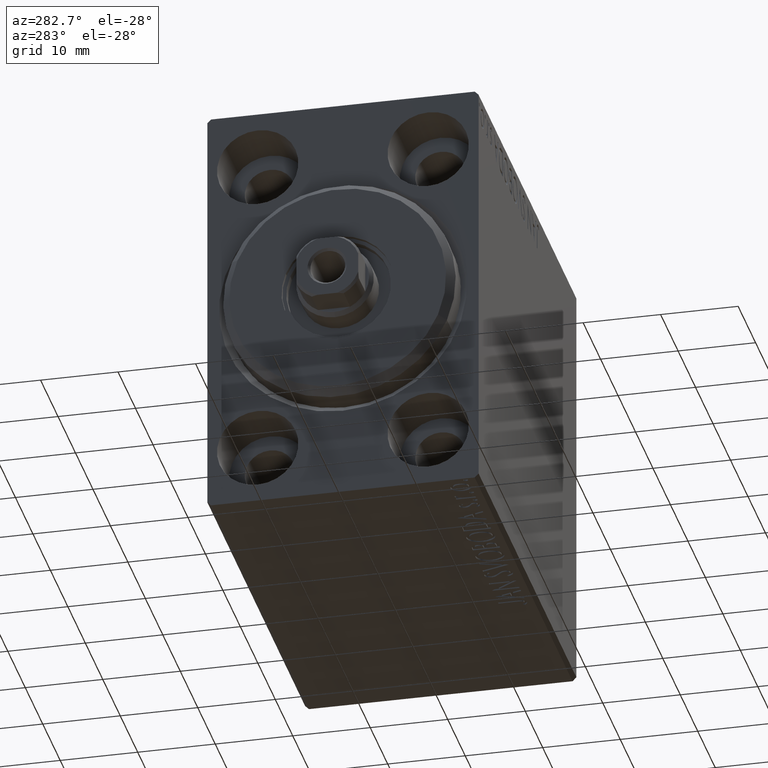
[diagram: clean part render]
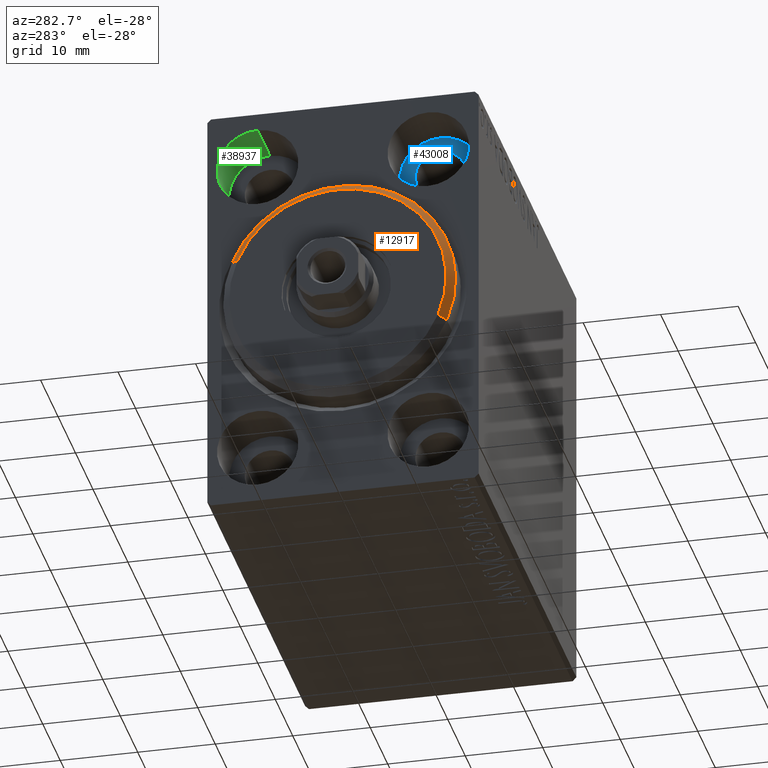
[diagram: same view with three faces highlighted in distinct colors, each labeled with its STEP entity id]
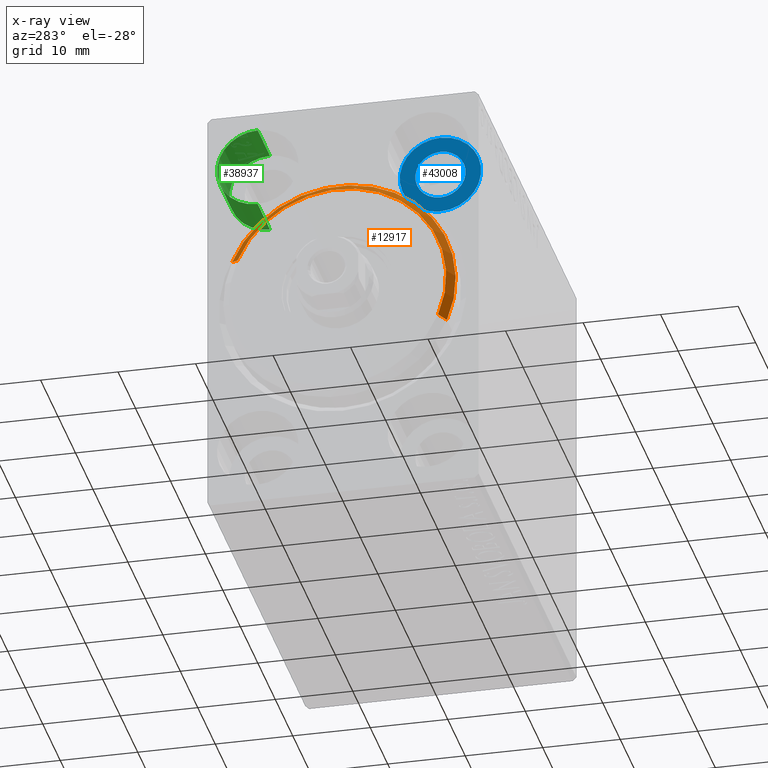
[diagram: x-ray of the same camera — body ghosted, the three highlighted faces saturated]
A machine part, auxiliary view with three faces highlighted in distinct colors.
The next image is the same camera in x-ray (body ghosted, the three faces saturated) — at least one of them is partly hidden behind the body in this view.
Their STEP definitions:

[orange] entity #12917 — the highlighted conical surface has half-angle 45 deg.
#1326 = CARTESIAN_POINT ( 'NONE',  ( 1.999999999999995781, 0.000000000000000000, 0.000000000000000000 ) ) ;
#1755 = DIRECTION ( 'NONE',  ( 0.000000000000000000, 0.000000000000000000, -1.000000000000000000 ) ) ;
#1868 = VERTEX_POINT ( 'NONE', #39111 ) ;
#5033 = AXIS2_PLACEMENT_3D ( 'NONE', #31356, #38246, #7605 ) ;
#5181 = CARTESIAN_POINT ( 'NONE',  ( 3.000000000000000000, 0.000000000000000000, 13.99999999999999645 ) ) ;
#5479 = ORIENTED_EDGE ( 'NONE', *, *, #8749, .F. ) ;
#6245 = EDGE_CURVE ( 'NONE', #16385, #1868, #18289, .T. ) ;
#7038 = CONICAL_SURFACE ( 'NONE', #19809, 13.99999999999999645, 0.7853981633974473908 ) ;
#7478 = ORIENTED_EDGE ( 'NONE', *, *, #6245, .T. ) ;
#7586 = CARTESIAN_POINT ( 'NONE',  ( 1.999999999999995781, 1.836970198721029589E-15, -15.00000000000000000 ) ) ;
#7605 = DIRECTION ( 'NONE',  ( 0.000000000000000000, 0.000000000000000000, -1.000000000000000000 ) ) ;
#8749 = EDGE_CURVE ( 'NONE', #26868, #1868, #31067, .T. ) ;
#10263 = DIRECTION ( 'NONE',  ( 0.000000000000000000, 0.000000000000000000, 1.000000000000000000 ) ) ;
#11424 = CARTESIAN_POINT ( 'NONE',  ( 3.000000000000000000, 0.000000000000000000, 13.99999999999999645 ) ) ;
#12917 = ADVANCED_FACE ( 'NONE', ( #17129 ), #7038, .T. ) ;
#14169 = ORIENTED_EDGE ( 'NONE', *, *, #28396, .F. ) ;
#14228 = CARTESIAN_POINT ( 'NONE',  ( 3.000000000000000000, 0.000000000000000000, 0.000000000000000000 ) ) ;
#14838 = DIRECTION ( 'NONE',  ( -1.000000000000000000, 0.000000000000000000, 0.000000000000000000 ) ) ;
#15327 = EDGE_LOOP ( 'NONE', ( #43388, #14169, #7478, #5479 ) ) ;
#16385 = VERTEX_POINT ( 'NONE', #5181 ) ;
#17129 = FACE_OUTER_BOUND ( 'NONE', #15327, .T. ) ;
#18289 = LINE ( 'NONE', #11424, #29584 ) ;
#18478 = CARTESIAN_POINT ( 'NONE',  ( 3.000000000000000000, 1.714505518806294244E-15, -13.99999999999999645 ) ) ;
#19809 = AXIS2_PLACEMENT_3D ( 'NONE', #14228, #23786, #10263 ) ;
#21185 = DIRECTION ( 'NONE',  ( -0.7071067811865482389, 0.000000000000000000, 0.7071067811865469066 ) ) ;
#23786 = DIRECTION ( 'NONE',  ( -1.000000000000000000, 0.000000000000000000, 0.000000000000000000 ) ) ;
#25249 = VERTEX_POINT ( 'NONE', #30672 ) ;
#25351 = DIRECTION ( 'NONE',  ( -0.7071067811865482389, 8.659560562354926695E-17, -0.7071067811865469066 ) ) ;
#26868 = VERTEX_POINT ( 'NONE', #7586 ) ;
#28396 = EDGE_CURVE ( 'NONE', #16385, #25249, #34811, .T. ) ;
#29584 = VECTOR ( 'NONE', #21185, 999.9999999999998863 ) ;
#30672 = CARTESIAN_POINT ( 'NONE',  ( 3.000000000000000000, 1.775737858763662015E-15, -13.99999999999999645 ) ) ;
#30840 = VECTOR ( 'NONE', #25351, 999.9999999999998863 ) ;
#31067 = CIRCLE ( 'NONE', #41001, 15.00000000000000000 ) ;
#31356 = CARTESIAN_POINT ( 'NONE',  ( 3.000000000000000000, 0.000000000000000000, 0.000000000000000000 ) ) ;
#34811 = CIRCLE ( 'NONE', #5033, 13.99999999999999645 ) ;
#38246 = DIRECTION ( 'NONE',  ( 1.000000000000000000, -0.000000000000000000, 0.000000000000000000 ) ) ;
#39111 = CARTESIAN_POINT ( 'NONE',  ( 1.999999999999995781, 0.000000000000000000, 15.00000000000000000 ) ) ;
#41001 = AXIS2_PLACEMENT_3D ( 'NONE', #1326, #14838, #1755 ) ;
#42684 = LINE ( 'NONE', #18478, #30840 ) ;
#43388 = ORIENTED_EDGE ( 'NONE', *, *, #43890, .F. ) ;
#43890 = EDGE_CURVE ( 'NONE', #25249, #26868, #42684, .T. ) ;

[blue] entity #43008 — the highlighted planar face has unit normal (-1, 0, 0).
#970 = CARTESIAN_POINT ( 'NONE',  ( 7.000000000000000000, -11.00000000000000355, 20.00000000000000000 ) ) ;
#1716 = CARTESIAN_POINT ( 'NONE',  ( 6.999999999999999112, -11.00000000000000355, 23.25000000000000000 ) ) ;
#2324 = CIRCLE ( 'NONE', #18615, 5.250000000000000888 ) ;
#2389 = CARTESIAN_POINT ( 'NONE',  ( 7.000000000000000000, -11.00000000000000355, 14.75000000000000000 ) ) ;
#3326 = EDGE_LOOP ( 'NONE', ( #43029, #22285 ) ) ;
#6160 = CARTESIAN_POINT ( 'NONE',  ( 6.999999999999999112, -11.00000000000000355, 16.75000000000000000 ) ) ;
#6474 = AXIS2_PLACEMENT_3D ( 'NONE', #12622, #12399, #34374 ) ;
#8707 = PLANE ( 'NONE',  #42144 ) ;
#12399 = DIRECTION ( 'NONE',  ( -1.000000000000000000, 0.000000000000000000, 0.000000000000000000 ) ) ;
#12622 = CARTESIAN_POINT ( 'NONE',  ( 6.999999999999999112, -11.00000000000000355, 20.00000000000000000 ) ) ;
#12807 = AXIS2_PLACEMENT_3D ( 'NONE', #15259, #29028, #28809 ) ;
#13026 = EDGE_CURVE ( 'NONE', #18715, #42421, #38276, .T. ) ;
#15259 = CARTESIAN_POINT ( 'NONE',  ( 7.000000000000000000, -11.00000000000000355, 20.00000000000000000 ) ) ;
#18256 = FACE_BOUND ( 'NONE', #3326, .T. ) ;
#18615 = AXIS2_PLACEMENT_3D ( 'NONE', #970, #34707, #41589 ) ;
#18715 = VERTEX_POINT ( 'NONE', #6160 ) ;
#22285 = ORIENTED_EDGE ( 'NONE', *, *, #13026, .F. ) ;
#25133 = DIRECTION ( 'NONE',  ( 0.000000000000000000, 0.000000000000000000, 1.000000000000000000 ) ) ;
#25349 = ORIENTED_EDGE ( 'NONE', *, *, #37429, .T. ) ;
#25522 = DIRECTION ( 'NONE',  ( 0.000000000000000000, 0.000000000000000000, 1.000000000000000000 ) ) ;
#25599 = CIRCLE ( 'NONE', #6474, 3.249999999999999556 ) ;
#25727 = VERTEX_POINT ( 'NONE', #2389 ) ;
#25779 = VERTEX_POINT ( 'NONE', #29907 ) ;
#26108 = ORIENTED_EDGE ( 'NONE', *, *, #27342, .T. ) ;
#27342 = EDGE_CURVE ( 'NONE', #25779, #25727, #42574, .T. ) ;
#28476 = CARTESIAN_POINT ( 'NONE',  ( 7.000000000000000000, 0.000000000000000000, 0.000000000000000000 ) ) ;
#28809 = DIRECTION ( 'NONE',  ( 0.000000000000000000, 0.000000000000000000, 1.000000000000000000 ) ) ;
#29028 = DIRECTION ( 'NONE',  ( -1.000000000000000000, 0.000000000000000000, 0.000000000000000000 ) ) ;
#29907 = CARTESIAN_POINT ( 'NONE',  ( 7.000000000000000000, -11.00000000000000355, 25.25000000000000000 ) ) ;
#29979 = EDGE_CURVE ( 'NONE', #42421, #18715, #25599, .T. ) ;
#31805 = DIRECTION ( 'NONE',  ( -1.000000000000000000, 0.000000000000000000, 0.000000000000000000 ) ) ;
#33289 = AXIS2_PLACEMENT_3D ( 'NONE', #35748, #38440, #25522 ) ;
#34374 = DIRECTION ( 'NONE',  ( 0.000000000000000000, 0.000000000000000000, 1.000000000000000000 ) ) ;
#34707 = DIRECTION ( 'NONE',  ( -1.000000000000000000, 0.000000000000000000, 0.000000000000000000 ) ) ;
#35748 = CARTESIAN_POINT ( 'NONE',  ( 6.999999999999999112, -11.00000000000000355, 20.00000000000000000 ) ) ;
#37429 = EDGE_CURVE ( 'NONE', #25727, #25779, #2324, .T. ) ;
#38276 = CIRCLE ( 'NONE', #33289, 3.249999999999999556 ) ;
#38440 = DIRECTION ( 'NONE',  ( -1.000000000000000000, 0.000000000000000000, 0.000000000000000000 ) ) ;
#41589 = DIRECTION ( 'NONE',  ( 0.000000000000000000, 0.000000000000000000, 1.000000000000000000 ) ) ;
#42025 = FACE_OUTER_BOUND ( 'NONE', #42575, .T. ) ;
#42144 = AXIS2_PLACEMENT_3D ( 'NONE', #28476, #31805, #25133 ) ;
#42421 = VERTEX_POINT ( 'NONE', #1716 ) ;
#42574 = CIRCLE ( 'NONE', #12807, 5.250000000000000888 ) ;
#42575 = EDGE_LOOP ( 'NONE', ( #26108, #25349 ) ) ;
#43008 = ADVANCED_FACE ( 'NONE', ( #18256, #42025 ), #8707, .T. ) ;
#43029 = ORIENTED_EDGE ( 'NONE', *, *, #29979, .F. ) ;

[green] entity #38937 — the highlighted cylindrical surface (partial cylindrical patch) has radius 5.25 mm, axis along (-1, -0, -0).
#367 = DIRECTION ( 'NONE',  ( 0.000000000000000000, 0.000000000000000000, 1.000000000000000000 ) ) ;
#1689 = CARTESIAN_POINT ( 'NONE',  ( 7.000000000000000000, 11.00000000000000355, 20.00000000000000000 ) ) ;
#2208 = CARTESIAN_POINT ( 'NONE',  ( 0.000000000000000000, 11.00000000000000355, 25.25000000000000000 ) ) ;
#2285 = EDGE_LOOP ( 'NONE', ( #11852, #3273, #6825, #34999 ) ) ;
#2297 = CARTESIAN_POINT ( 'NONE',  ( 7.000000000000000000, 11.00000000000000355, 25.25000000000000000 ) ) ;
#2366 = LINE ( 'NONE', #22763, #18463 ) ;
#3273 = ORIENTED_EDGE ( 'NONE', *, *, #27498, .F. ) ;
#4379 = VECTOR ( 'NONE', #28604, 1000.000000000000000 ) ;
#6215 = DIRECTION ( 'NONE',  ( -1.000000000000000000, 0.000000000000000000, 0.000000000000000000 ) ) ;
#6296 = CARTESIAN_POINT ( 'NONE',  ( 7.000000000000000000, 11.00000000000000355, 14.75000000000000000 ) ) ;
#6825 = ORIENTED_EDGE ( 'NONE', *, *, #17255, .T. ) ;
#10562 = CYLINDRICAL_SURFACE ( 'NONE', #16543, 5.250000000000000888 ) ;
#11729 = LINE ( 'NONE', #15716, #4379 ) ;
#11852 = ORIENTED_EDGE ( 'NONE', *, *, #31374, .F. ) ;
#14729 = VERTEX_POINT ( 'NONE', #2297 ) ;
#15365 = VERTEX_POINT ( 'NONE', #15654 ) ;
#15654 = CARTESIAN_POINT ( 'NONE',  ( 0.000000000000000000, 11.00000000000000355, 14.75000000000000000 ) ) ;
#15716 = CARTESIAN_POINT ( 'NONE',  ( 7.000000000000000000, 11.00000000000000355, 14.75000000000000000 ) ) ;
#15778 = AXIS2_PLACEMENT_3D ( 'NONE', #15980, #6215, #29304 ) ;
#15980 = CARTESIAN_POINT ( 'NONE',  ( 0.000000000000000000, 11.00000000000000355, 20.00000000000000000 ) ) ;
#16543 = AXIS2_PLACEMENT_3D ( 'NONE', #20753, #37656, #367 ) ;
#17255 = EDGE_CURVE ( 'NONE', #14729, #21531, #2366, .T. ) ;
#18463 = VECTOR ( 'NONE', #30099, 1000.000000000000000 ) ;
#19197 = CIRCLE ( 'NONE', #24872, 5.250000000000000888 ) ;
#20753 = CARTESIAN_POINT ( 'NONE',  ( 7.000000000000000000, 11.00000000000000355, 20.00000000000000000 ) ) ;
#21193 = FACE_OUTER_BOUND ( 'NONE', #2285, .T. ) ;
#21531 = VERTEX_POINT ( 'NONE', #2208 ) ;
#22763 = CARTESIAN_POINT ( 'NONE',  ( 7.000000000000000000, 11.00000000000000355, 25.25000000000000000 ) ) ;
#24872 = AXIS2_PLACEMENT_3D ( 'NONE', #1689, #32097, #35428 ) ;
#27498 = EDGE_CURVE ( 'NONE', #14729, #37345, #19197, .T. ) ;
#28604 = DIRECTION ( 'NONE',  ( -1.000000000000000000, -0.000000000000000000, -0.000000000000000000 ) ) ;
#29304 = DIRECTION ( 'NONE',  ( 0.000000000000000000, 0.000000000000000000, 1.000000000000000000 ) ) ;
#30099 = DIRECTION ( 'NONE',  ( -1.000000000000000000, -0.000000000000000000, -0.000000000000000000 ) ) ;
#31374 = EDGE_CURVE ( 'NONE', #37345, #15365, #11729, .T. ) ;
#32097 = DIRECTION ( 'NONE',  ( -1.000000000000000000, 0.000000000000000000, 0.000000000000000000 ) ) ;
#33969 = EDGE_CURVE ( 'NONE', #21531, #15365, #34944, .T. ) ;
#34944 = CIRCLE ( 'NONE', #15778, 5.250000000000000888 ) ;
#34999 = ORIENTED_EDGE ( 'NONE', *, *, #33969, .T. ) ;
#35428 = DIRECTION ( 'NONE',  ( 0.000000000000000000, 0.000000000000000000, 1.000000000000000000 ) ) ;
#37345 = VERTEX_POINT ( 'NONE', #6296 ) ;
#37656 = DIRECTION ( 'NONE',  ( -1.000000000000000000, -0.000000000000000000, -0.000000000000000000 ) ) ;
#38937 = ADVANCED_FACE ( 'NONE', ( #21193 ), #10562, .F. ) ;